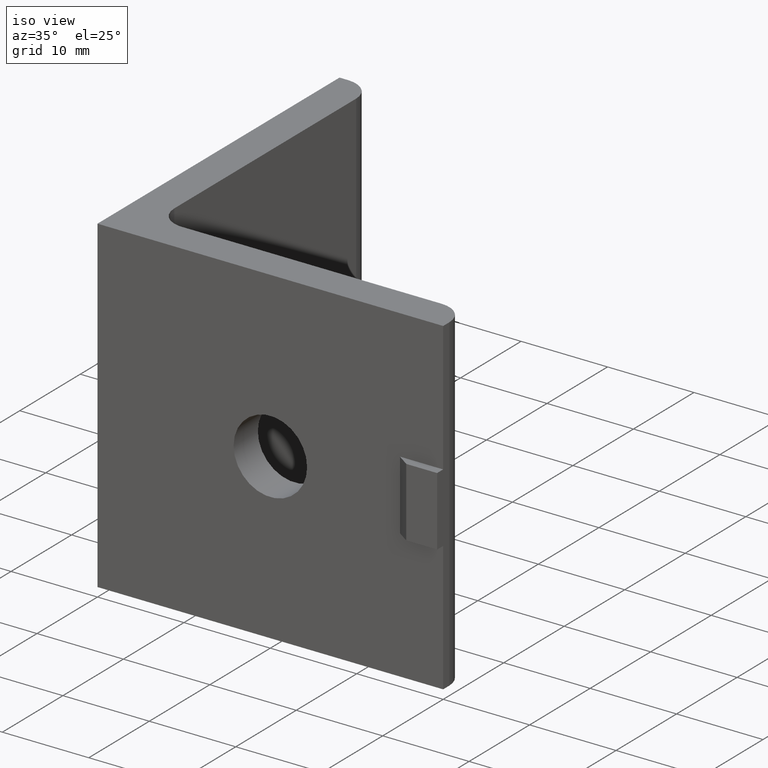
[diagram: clean part render]
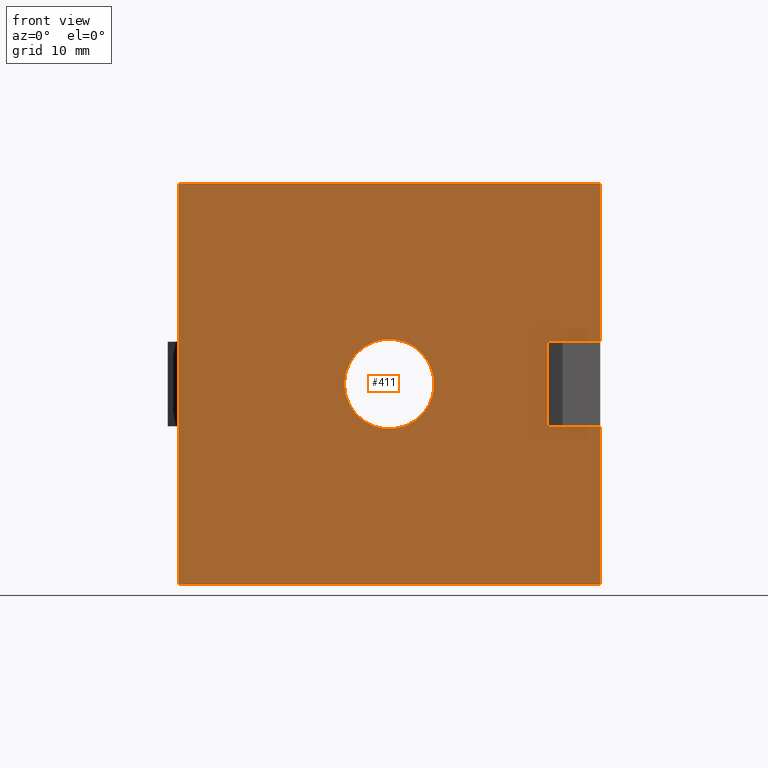
[diagram: tour spotlight — one face highlighted and labeled with its STEP entity id]
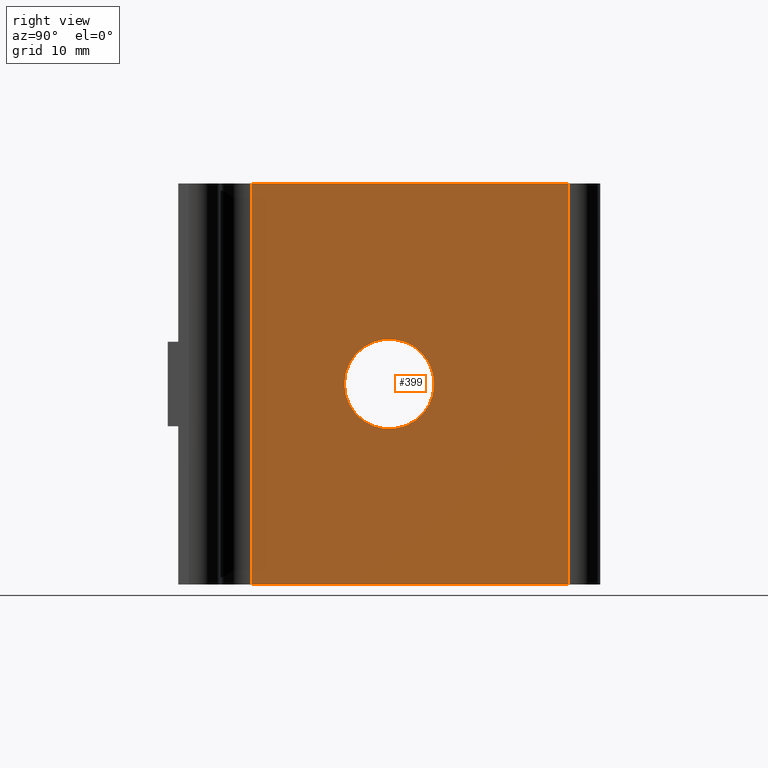
[diagram: tour spotlight — one face highlighted and labeled with its STEP entity id]
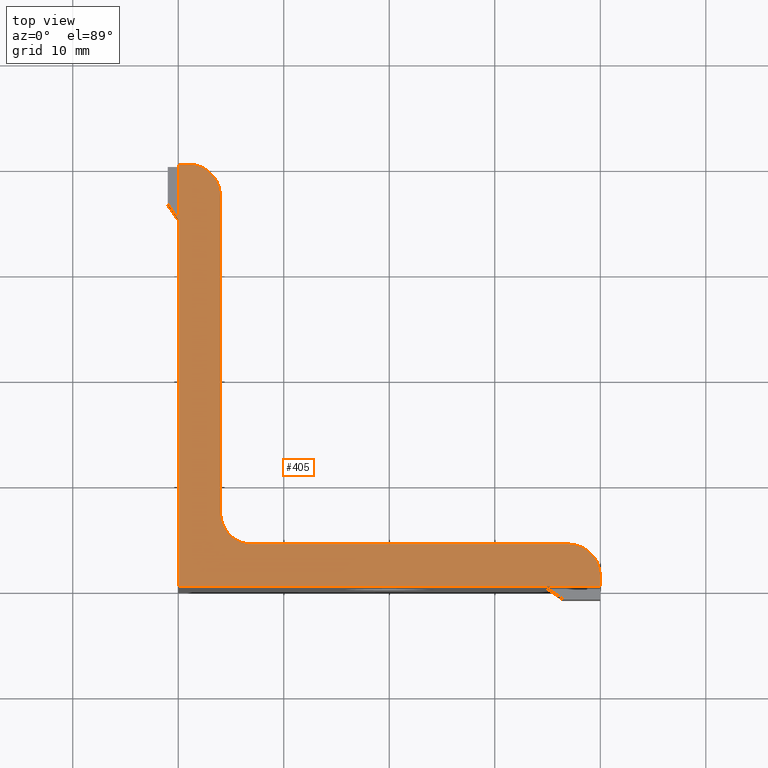
[diagram: tour spotlight — one face highlighted and labeled with its STEP entity id]
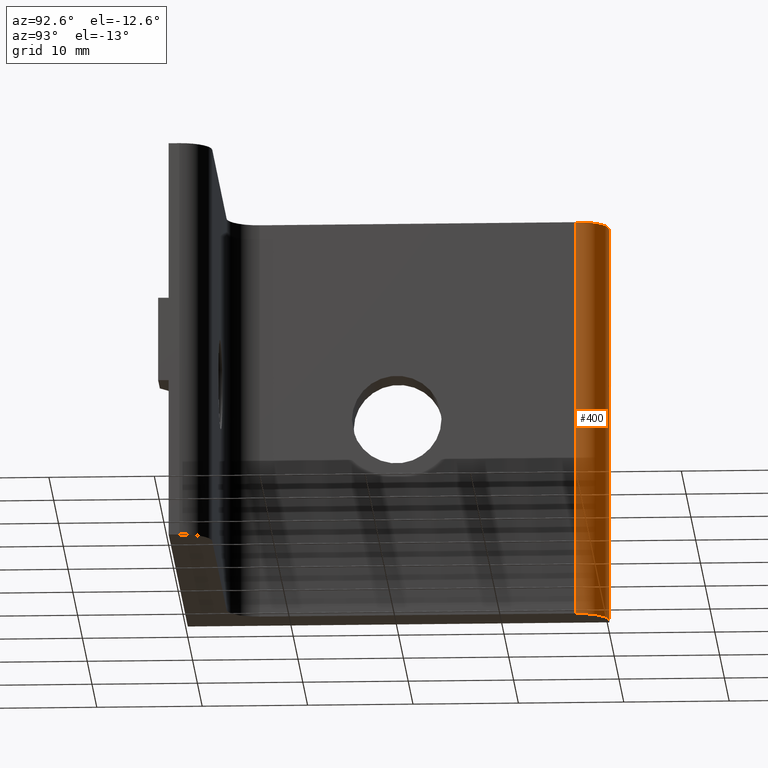
[diagram: tour spotlight — one face highlighted and labeled with its STEP entity id]
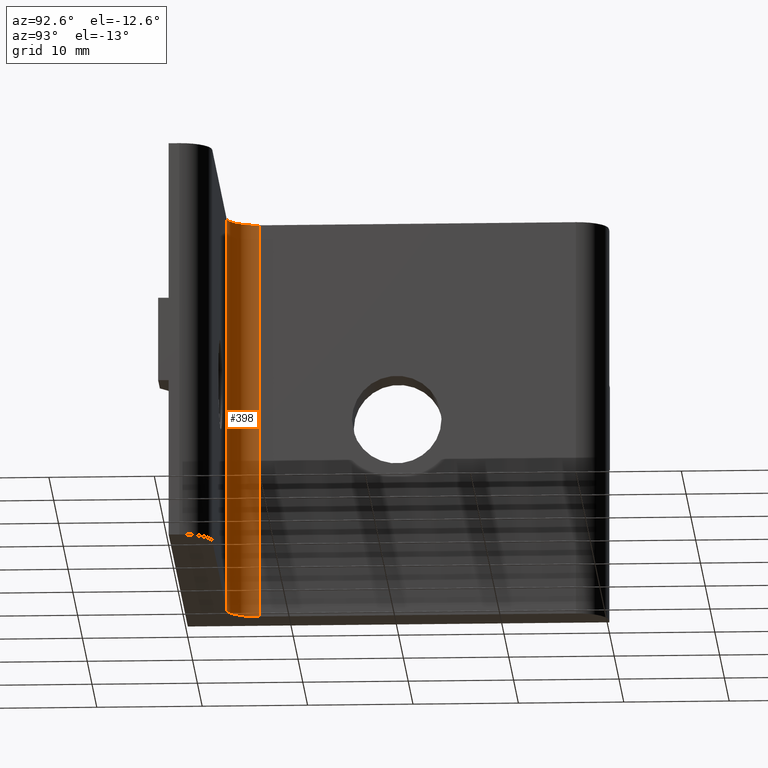
[diagram: tour spotlight — one face highlighted and labeled with its STEP entity id]
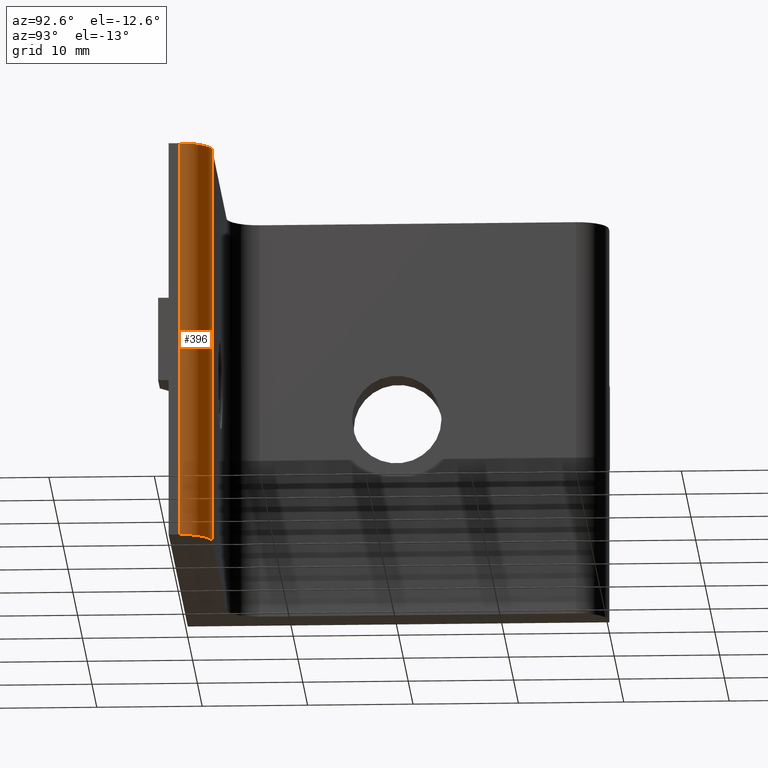
[diagram: tour spotlight — one face highlighted and labeled with its STEP entity id]
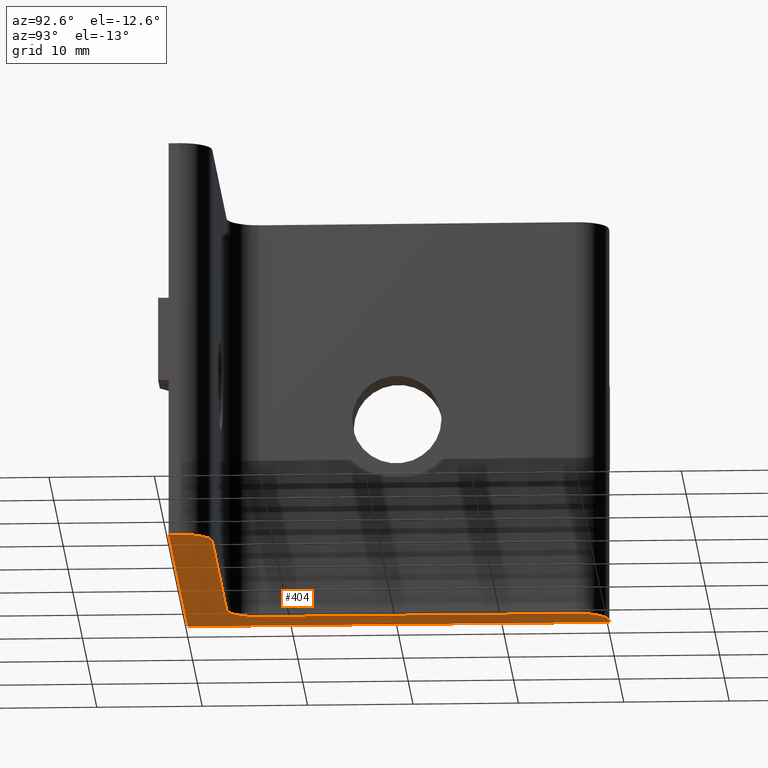
[diagram: tour spotlight — one face highlighted and labeled with its STEP entity id]
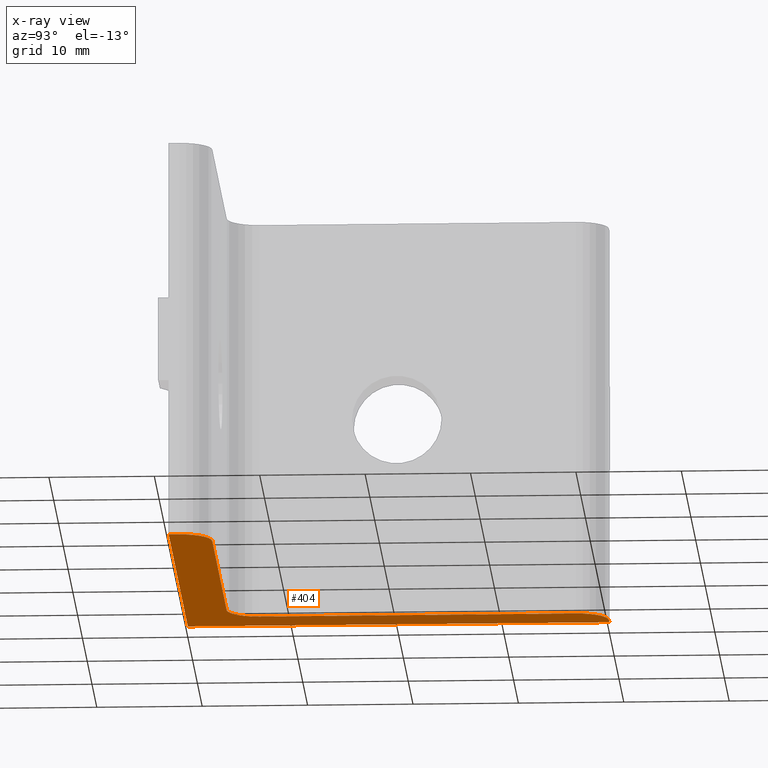
[diagram: x-ray of the same camera — body ghosted, this tour face saturated]
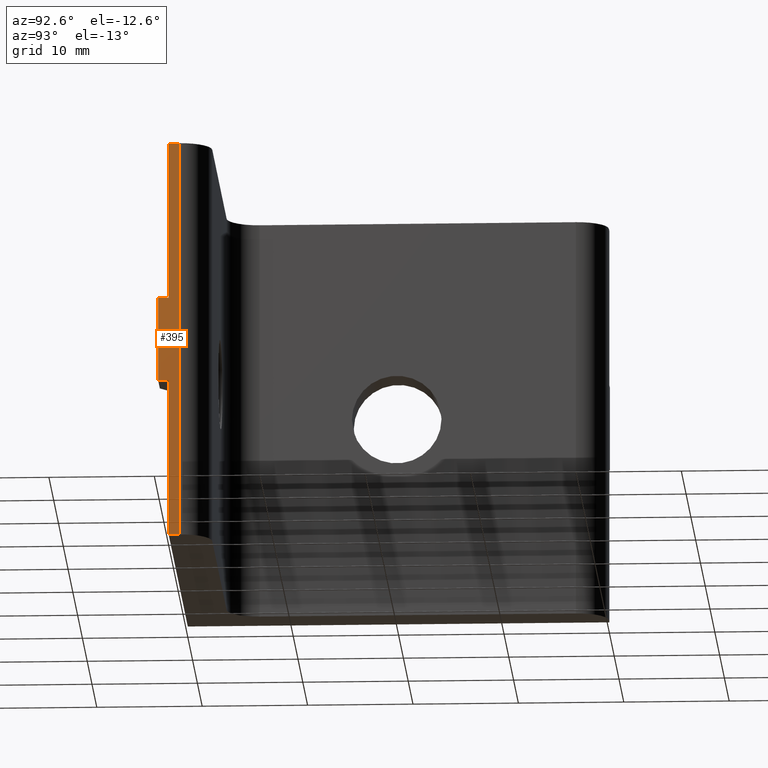
[diagram: tour spotlight — one face highlighted and labeled with its STEP entity id]
A machine part: a face-by-face anatomy tour. The part has 21 B-rep faces; the first image is the clean iso view, then the 8 largest visible faces are spotlighted one at a time (largest first), each with its STEP entity span.

Face 1 — front view, entity #411. In plain terms, the highlighted planar face has unit normal (0, -1, 0).
Definition (entity closure, byte-faithful):
#18=FACE_BOUND('',#79,.T.);
#30=CIRCLE('',#444,4.24999905648292);
#54=FACE_OUTER_BOUND('',#78,.T.);
#78=EDGE_LOOP('',(#364,#365,#366,#367,#368,#369,#370,#371));
#79=EDGE_LOOP('',(#372));
#84=LINE('',#560,#129);
#93=LINE('',#579,#138);
#96=LINE('',#584,#141);
#120=LINE('',#648,#165);
#123=LINE('',#653,#168);
#126=LINE('',#659,#171);
#127=LINE('',#663,#172);
#128=LINE('',#665,#173);
#129=VECTOR('',#451,8.);
#138=VECTOR('',#464,15.);
#141=VECTOR('',#467,15.);
#165=VECTOR('',#525,39.9999863498886);
#168=VECTOR('',#530,39.9999863498886);
#171=VECTOR('',#539,38.);
#172=VECTOR('',#544,5.00000747002513);
#173=VECTOR('',#547,5.00000747002513);
#174=VERTEX_POINT('',#558);
#175=VERTEX_POINT('',#559);
#182=VERTEX_POINT('',#576);
#183=VERTEX_POINT('',#578);
#184=VERTEX_POINT('',#581);
#185=VERTEX_POINT('',#583);
#208=VERTEX_POINT('',#647);
#209=VERTEX_POINT('',#651);
#211=VERTEX_POINT('',#667);
#212=EDGE_CURVE('',#174,#175,#84,.T.);
#221=EDGE_CURVE('',#182,#183,#93,.T.);
#224=EDGE_CURVE('',#185,#184,#96,.T.);
#256=EDGE_CURVE('',#208,#185,#120,.T.);
#259=EDGE_CURVE('',#209,#182,#123,.T.);
#262=EDGE_CURVE('',#208,#209,#126,.T.);
#264=EDGE_CURVE('',#175,#183,#127,.T.);
#265=EDGE_CURVE('',#184,#174,#128,.T.);
#266=EDGE_CURVE('',#211,#211,#30,.T.);
#364=ORIENTED_EDGE('',*,*,#264,.T.);
#365=ORIENTED_EDGE('',*,*,#221,.F.);
#366=ORIENTED_EDGE('',*,*,#259,.F.);
#367=ORIENTED_EDGE('',*,*,#262,.F.);
#368=ORIENTED_EDGE('',*,*,#256,.T.);
#369=ORIENTED_EDGE('',*,*,#224,.T.);
#370=ORIENTED_EDGE('',*,*,#265,.T.);
#371=ORIENTED_EDGE('',*,*,#212,.T.);
#372=ORIENTED_EDGE('',*,*,#266,.T.);
#392=PLANE('',#443);
#411=ADVANCED_FACE('',(#54,#18),#392,.T.);
#443=AXIS2_PLACEMENT_3D('',#666,#548,#549);
#444=AXIS2_PLACEMENT_3D('',#668,#550,#551);
#451=DIRECTION('',(0.,0.,1.));
#464=DIRECTION('',(0.,0.,-1.));
#467=DIRECTION('',(0.,0.,1.));
#525=DIRECTION('',(1.,0.,0.));
#530=DIRECTION('',(1.,0.,0.));
#539=DIRECTION('',(0.,0.,1.));
#544=DIRECTION('',(1.,0.,0.));
#547=DIRECTION('',(-1.,0.,0.));
#548=DIRECTION('center_axis',(0.,-1.,0.));
#549=DIRECTION('ref_axis',(0.,0.,-1.));
#550=DIRECTION('center_axis',(0.,1.,0.));
#551=DIRECTION('ref_axis',(-1.,0.,0.));
#558=CARTESIAN_POINT('',(34.999978879863,0.,-4.));
#559=CARTESIAN_POINT('',(34.999978879863,0.,4.));
#560=CARTESIAN_POINT('',(34.999978879863,0.,-4.));
#576=CARTESIAN_POINT('',(39.9999863498886,0.,19.));
#578=CARTESIAN_POINT('',(39.9999863498881,0.,4.));
#579=CARTESIAN_POINT('',(39.9999863498886,0.,19.));
#581=CARTESIAN_POINT('',(39.9999863498881,0.,-4.));
#583=CARTESIAN_POINT('',(39.9999863498886,0.,-19.));
#584=CARTESIAN_POINT('',(39.9999863498886,0.,-19.));
#647=CARTESIAN_POINT('',(0.,0.,-19.));
#648=CARTESIAN_POINT('',(0.,0.,-19.));
#651=CARTESIAN_POINT('',(0.,0.,19.));
#653=CARTESIAN_POINT('',(0.,0.,19.));
#659=CARTESIAN_POINT('',(0.,0.,-19.));
#663=CARTESIAN_POINT('',(34.999978879863,0.,4.));
#665=CARTESIAN_POINT('',(39.9999863498881,0.,-4.));
#666=CARTESIAN_POINT('Origin',(-0.003598488838179,0.,-19.0035984888382));
#667=CARTESIAN_POINT('',(24.2499987414494,-6.514193E-14,0.));
#668=CARTESIAN_POINT('Origin',(19.9999996849665,0.,0.));

Face 2 — right view, entity #399. In plain terms, the highlighted planar face has unit normal (1, 0, 0).
Definition (entity closure, byte-faithful):
#16=FACE_BOUND('',#65,.T.);
#26=CIRCLE('',#428,4.24999905648292);
#42=FACE_OUTER_BOUND('',#64,.T.);
#64=EDGE_LOOP('',(#296,#297,#298,#299));
#65=EDGE_LOOP('',(#300));
#102=LINE('',#604,#147);
#103=LINE('',#608,#148);
#104=LINE('',#610,#149);
#105=LINE('',#611,#150);
#147=VECTOR('',#487,38.);
#148=VECTOR('',#492,29.9999916301208);
#149=VECTOR('',#493,38.);
#150=VECTOR('',#494,29.9999916301208);
#191=VERTEX_POINT('',#601);
#192=VERTEX_POINT('',#603);
#193=VERTEX_POINT('',#607);
#194=VERTEX_POINT('',#609);
#195=VERTEX_POINT('',#612);
#234=EDGE_CURVE('',#191,#192,#102,.T.);
#236=EDGE_CURVE('',#191,#193,#103,.T.);
#237=EDGE_CURVE('',#193,#194,#104,.T.);
#238=EDGE_CURVE('',#192,#194,#105,.T.);
#239=EDGE_CURVE('',#195,#195,#26,.T.);
#296=ORIENTED_EDGE('',*,*,#236,.T.);
#297=ORIENTED_EDGE('',*,*,#237,.T.);
#298=ORIENTED_EDGE('',*,*,#238,.F.);
#299=ORIENTED_EDGE('',*,*,#234,.F.);
#300=ORIENTED_EDGE('',*,*,#239,.F.);
#381=PLANE('',#427);
#399=ADVANCED_FACE('',(#42,#16),#381,.T.);
#427=AXIS2_PLACEMENT_3D('',#606,#490,#491);
#428=AXIS2_PLACEMENT_3D('',#613,#495,#496);
#487=DIRECTION('',(0.,0.,1.));
#490=DIRECTION('center_axis',(1.,0.,0.));
#491=DIRECTION('ref_axis',(0.,0.,-1.));
#492=DIRECTION('',(0.,1.,0.));
#493=DIRECTION('',(0.,0.,1.));
#494=DIRECTION('',(0.,1.,0.));
#495=DIRECTION('center_axis',(1.,0.,0.));
#496=DIRECTION('ref_axis',(0.,1.,0.));
#601=CARTESIAN_POINT('',(4.00000006370487,6.99999825401028,-19.));
#603=CARTESIAN_POINT('',(4.00000006370487,6.99999825401028,19.));
#604=CARTESIAN_POINT('',(4.00000006370487,6.99999825401028,-19.));
#606=CARTESIAN_POINT('Origin',(4.00000006370487,6.99999825401028,-19.));
#607=CARTESIAN_POINT('',(4.00000006370487,36.9999898841311,-19.));
#608=CARTESIAN_POINT('',(4.00000006370487,6.99999825401028,-19.));
#609=CARTESIAN_POINT('',(4.00000006370487,36.9999898841311,19.));
#610=CARTESIAN_POINT('',(4.00000006370487,36.9999898841311,-19.));
#611=CARTESIAN_POINT('',(4.00000006370487,6.99999825401028,19.));
#612=CARTESIAN_POINT('',(4.00000006370487,15.7500041334356,3.552714E-15));
#613=CARTESIAN_POINT('Origin',(4.00000006370487,20.0000031899185,3.552714E-15));

Face 3 — top view, entity #405. In plain terms, the highlighted planar face has unit normal (0, 0, 1).
Definition (entity closure, byte-faithful):
#22=CIRCLE('',#421,3.00000087730359);
#25=CIRCLE('',#426,3.01646599772585);
#28=CIRCLE('',#431,3.00000123570885);
#48=FACE_OUTER_BOUND('',#71,.T.);
#71=EDGE_LOOP('',(#330,#331,#332,#333,#334,#335,#336,#337,#338));
#92=LINE('',#577,#137);
#101=LINE('',#597,#146);
#105=LINE('',#611,#150);
#113=LINE('',#633,#158);
#122=LINE('',#652,#167);
#123=LINE('',#653,#168);
#137=VECTOR('',#463,1.00000586461692);
#146=VECTOR('',#480,29.6686892302173);
#150=VECTOR('',#494,29.9999916301208);
#158=VECTOR('',#512,0.999998827996023);
#167=VECTOR('',#529,39.9999911198402);
#168=VECTOR('',#530,39.9999863498886);
#181=VERTEX_POINT('',#574);
#182=VERTEX_POINT('',#576);
#187=VERTEX_POINT('',#589);
#189=VERTEX_POINT('',#595);
#192=VERTEX_POINT('',#603);
#194=VERTEX_POINT('',#609);
#197=VERTEX_POINT('',#617);
#203=VERTEX_POINT('',#631);
#209=VERTEX_POINT('',#651);
#220=EDGE_CURVE('',#182,#181,#92,.T.);
#228=EDGE_CURVE('',#181,#187,#22,.T.);
#231=EDGE_CURVE('',#187,#189,#101,.T.);
#235=EDGE_CURVE('',#189,#192,#25,.T.);
#238=EDGE_CURVE('',#192,#194,#105,.T.);
#242=EDGE_CURVE('',#194,#197,#28,.T.);
#249=EDGE_CURVE('',#197,#203,#113,.T.);
#258=EDGE_CURVE('',#209,#203,#122,.T.);
#259=EDGE_CURVE('',#209,#182,#123,.T.);
#330=ORIENTED_EDGE('',*,*,#228,.T.);
#331=ORIENTED_EDGE('',*,*,#231,.T.);
#332=ORIENTED_EDGE('',*,*,#235,.T.);
#333=ORIENTED_EDGE('',*,*,#238,.T.);
#334=ORIENTED_EDGE('',*,*,#242,.T.);
#335=ORIENTED_EDGE('',*,*,#249,.T.);
#336=ORIENTED_EDGE('',*,*,#258,.F.);
#337=ORIENTED_EDGE('',*,*,#259,.T.);
#338=ORIENTED_EDGE('',*,*,#220,.T.);
#386=PLANE('',#436);
#405=ADVANCED_FACE('',(#48),#386,.T.);
#421=AXIS2_PLACEMENT_3D('',#591,#474,#475);
#426=AXIS2_PLACEMENT_3D('',#605,#488,#489);
#431=AXIS2_PLACEMENT_3D('',#619,#502,#503);
#436=AXIS2_PLACEMENT_3D('',#650,#527,#528);
#463=DIRECTION('',(-2.30925034835165E-13,1.,0.));
#474=DIRECTION('center_axis',(0.,0.,1.));
#475=DIRECTION('ref_axis',(0.,1.,0.));
#480=DIRECTION('',(-1.,0.,0.));
#488=DIRECTION('center_axis',(0.,0.,-1.));
#489=DIRECTION('ref_axis',(-1.,0.,0.));
#494=DIRECTION('',(0.,1.,0.));
#502=DIRECTION('center_axis',(0.,0.,1.));
#503=DIRECTION('ref_axis',(1.,0.,0.));
#512=DIRECTION('',(-1.,0.,0.));
#527=DIRECTION('center_axis',(0.,0.,1.));
#528=DIRECTION('ref_axis',(1.,0.,0.));
#529=DIRECTION('',(0.,1.,0.));
#530=DIRECTION('',(1.,0.,0.));
#574=CARTESIAN_POINT('',(39.9999863498876,1.00000586461692,19.));
#576=CARTESIAN_POINT('',(39.9999863498886,0.,19.));
#577=CARTESIAN_POINT('',(39.9999863498883,-5.33140627519022E-26,19.));
#589=CARTESIAN_POINT('',(36.9999854725841,4.00000674192052,19.));
#591=CARTESIAN_POINT('Origin',(36.9999854725841,1.00000586461692,19.));
#595=CARTESIAN_POINT('',(7.33129624236676,4.00000674192097,19.));
#597=CARTESIAN_POINT('',(36.9999854725841,4.00000674192052,19.));
#603=CARTESIAN_POINT('',(4.00000006370487,6.99999825401028,19.));
#605=CARTESIAN_POINT('Origin',(7.01646606143072,6.99999825401028,19.));
#609=CARTESIAN_POINT('',(4.00000006370487,36.9999898841311,19.));
#611=CARTESIAN_POINT('',(4.00000006370487,6.99999825401028,19.));
#617=CARTESIAN_POINT('',(0.999998827996023,39.9999911198402,19.));
#619=CARTESIAN_POINT('Origin',(0.999998827996023,36.9999898841311,19.));
#631=CARTESIAN_POINT('',(0.,39.9999911198402,19.));
#633=CARTESIAN_POINT('',(0.999998827996023,39.9999911198402,19.));
#650=CARTESIAN_POINT('Origin',(-5.10000416927255,-5.10000360110735,19.));
#651=CARTESIAN_POINT('',(0.,0.,19.));
#652=CARTESIAN_POINT('',(0.,0.,19.));
#653=CARTESIAN_POINT('',(0.,0.,19.));

Face 4 — auxiliary view, entity #400. In plain terms, the highlighted cylindrical surface (edge-blend (fillet) strip) has radius 3 mm, axis along (0, 0, 1).
Definition (entity closure, byte-faithful):
#27=CIRCLE('',#430,3.00000123570885);
#28=CIRCLE('',#431,3.00000123570885);
#33=CYLINDRICAL_SURFACE('',#429,3.00000123570885);
#43=FACE_OUTER_BOUND('',#66,.T.);
#66=EDGE_LOOP('',(#301,#302,#303,#304));
#104=LINE('',#610,#149);
#106=LINE('',#618,#151);
#149=VECTOR('',#493,38.);
#151=VECTOR('',#501,38.);
#193=VERTEX_POINT('',#607);
#194=VERTEX_POINT('',#609);
#196=VERTEX_POINT('',#615);
#197=VERTEX_POINT('',#617);
#237=EDGE_CURVE('',#193,#194,#104,.T.);
#240=EDGE_CURVE('',#193,#196,#27,.T.);
#241=EDGE_CURVE('',#196,#197,#106,.T.);
#242=EDGE_CURVE('',#194,#197,#28,.T.);
#301=ORIENTED_EDGE('',*,*,#240,.T.);
#302=ORIENTED_EDGE('',*,*,#241,.T.);
#303=ORIENTED_EDGE('',*,*,#242,.F.);
#304=ORIENTED_EDGE('',*,*,#237,.F.);
#400=ADVANCED_FACE('',(#43),#33,.T.);
#429=AXIS2_PLACEMENT_3D('',#614,#497,#498);
#430=AXIS2_PLACEMENT_3D('',#616,#499,#500);
#431=AXIS2_PLACEMENT_3D('',#619,#502,#503);
#493=DIRECTION('',(0.,0.,1.));
#497=DIRECTION('center_axis',(0.,0.,1.));
#498=DIRECTION('ref_axis',(1.,0.,0.));
#499=DIRECTION('center_axis',(0.,0.,1.));
#500=DIRECTION('ref_axis',(1.,0.,0.));
#501=DIRECTION('',(0.,0.,1.));
#502=DIRECTION('center_axis',(0.,0.,1.));
#503=DIRECTION('ref_axis',(1.,0.,0.));
#607=CARTESIAN_POINT('',(4.00000006370487,36.9999898841311,-19.));
#609=CARTESIAN_POINT('',(4.00000006370487,36.9999898841311,19.));
#610=CARTESIAN_POINT('',(4.00000006370487,36.9999898841311,-19.));
#614=CARTESIAN_POINT('Origin',(0.999998827996023,36.9999898841311,-19.));
#615=CARTESIAN_POINT('',(0.999998827996023,39.9999911198402,-19.));
#616=CARTESIAN_POINT('Origin',(0.999998827996023,36.9999898841311,-19.));
#617=CARTESIAN_POINT('',(0.999998827996023,39.9999911198402,19.));
#618=CARTESIAN_POINT('',(0.999998827996023,39.9999911198402,-19.));
#619=CARTESIAN_POINT('Origin',(0.999998827996023,36.9999898841311,19.));

Face 5 — auxiliary view, entity #398. In plain terms, the highlighted cylindrical surface (edge-blend (fillet) strip) has radius 3.0165 mm, axis along (0, 0, -1).
Definition (entity closure, byte-faithful):
#24=CIRCLE('',#425,3.01646599772585);
#25=CIRCLE('',#426,3.01646599772585);
#32=CYLINDRICAL_SURFACE('',#424,3.01646599772585);
#41=FACE_OUTER_BOUND('',#63,.T.);
#63=EDGE_LOOP('',(#292,#293,#294,#295));
#100=LINE('',#596,#145);
#102=LINE('',#604,#147);
#145=VECTOR('',#479,38.);
#147=VECTOR('',#487,38.);
#188=VERTEX_POINT('',#593);
#189=VERTEX_POINT('',#595);
#191=VERTEX_POINT('',#601);
#192=VERTEX_POINT('',#603);
#230=EDGE_CURVE('',#188,#189,#100,.T.);
#233=EDGE_CURVE('',#188,#191,#24,.T.);
#234=EDGE_CURVE('',#191,#192,#102,.T.);
#235=EDGE_CURVE('',#189,#192,#25,.T.);
#292=ORIENTED_EDGE('',*,*,#233,.T.);
#293=ORIENTED_EDGE('',*,*,#234,.T.);
#294=ORIENTED_EDGE('',*,*,#235,.F.);
#295=ORIENTED_EDGE('',*,*,#230,.F.);
#398=ADVANCED_FACE('',(#41),#32,.F.);
#424=AXIS2_PLACEMENT_3D('',#600,#483,#484);
#425=AXIS2_PLACEMENT_3D('',#602,#485,#486);
#426=AXIS2_PLACEMENT_3D('',#605,#488,#489);
#479=DIRECTION('',(0.,0.,1.));
#483=DIRECTION('center_axis',(0.,0.,-1.));
#484=DIRECTION('ref_axis',(0.104370538628116,-0.994538481239654,0.));
#485=DIRECTION('center_axis',(0.,0.,-1.));
#486=DIRECTION('ref_axis',(-1.,0.,0.));
#487=DIRECTION('',(0.,0.,1.));
#488=DIRECTION('center_axis',(0.,0.,-1.));
#489=DIRECTION('ref_axis',(-1.,0.,0.));
#593=CARTESIAN_POINT('',(7.33129624236676,4.00000674192097,-19.));
#595=CARTESIAN_POINT('',(7.33129624236676,4.00000674192097,19.));
#596=CARTESIAN_POINT('',(7.33129624236676,4.00000674192097,-19.));
#600=CARTESIAN_POINT('Origin',(7.01646606143072,6.99999825401028,-19.));
#601=CARTESIAN_POINT('',(4.00000006370487,6.99999825401028,-19.));
#602=CARTESIAN_POINT('Origin',(7.01646606143072,6.99999825401028,-19.));
#603=CARTESIAN_POINT('',(4.00000006370487,6.99999825401028,19.));
#604=CARTESIAN_POINT('',(4.00000006370487,6.99999825401028,-19.));
#605=CARTESIAN_POINT('Origin',(7.01646606143072,6.99999825401028,19.));

Face 6 — auxiliary view, entity #396. In plain terms, the highlighted cylindrical surface (edge-blend (fillet) strip) has radius 3 mm, axis along (0, 0, 1).
Definition (entity closure, byte-faithful):
#21=CIRCLE('',#420,3.00000087730359);
#22=CIRCLE('',#421,3.00000087730359);
#31=CYLINDRICAL_SURFACE('',#419,3.00000087730359);
#39=FACE_OUTER_BOUND('',#60,.T.);
#60=EDGE_LOOP('',(#283,#284,#285,#286));
#91=LINE('',#575,#136);
#98=LINE('',#590,#143);
#136=VECTOR('',#462,38.);
#143=VECTOR('',#473,38.);
#180=VERTEX_POINT('',#573);
#181=VERTEX_POINT('',#574);
#186=VERTEX_POINT('',#587);
#187=VERTEX_POINT('',#589);
#219=EDGE_CURVE('',#180,#181,#91,.T.);
#226=EDGE_CURVE('',#180,#186,#21,.T.);
#227=EDGE_CURVE('',#186,#187,#98,.T.);
#228=EDGE_CURVE('',#181,#187,#22,.T.);
#283=ORIENTED_EDGE('',*,*,#226,.T.);
#284=ORIENTED_EDGE('',*,*,#227,.T.);
#285=ORIENTED_EDGE('',*,*,#228,.F.);
#286=ORIENTED_EDGE('',*,*,#219,.F.);
#396=ADVANCED_FACE('',(#39),#31,.T.);
#419=AXIS2_PLACEMENT_3D('',#586,#469,#470);
#420=AXIS2_PLACEMENT_3D('',#588,#471,#472);
#421=AXIS2_PLACEMENT_3D('',#591,#474,#475);
#462=DIRECTION('',(0.,0.,1.));
#469=DIRECTION('center_axis',(0.,0.,1.));
#470=DIRECTION('ref_axis',(1.,0.,0.));
#471=DIRECTION('center_axis',(0.,0.,1.));
#472=DIRECTION('ref_axis',(0.,1.,0.));
#473=DIRECTION('',(0.,0.,1.));
#474=DIRECTION('center_axis',(0.,0.,1.));
#475=DIRECTION('ref_axis',(0.,1.,0.));
#573=CARTESIAN_POINT('',(39.9999863498876,1.00000586461692,-19.));
#574=CARTESIAN_POINT('',(39.9999863498876,1.00000586461692,19.));
#575=CARTESIAN_POINT('',(39.9999863498876,1.00000586461692,-19.));
#586=CARTESIAN_POINT('Origin',(36.9999854725841,1.00000586461692,-19.));
#587=CARTESIAN_POINT('',(36.9999854725841,4.00000674192052,-19.));
#588=CARTESIAN_POINT('Origin',(36.9999854725841,1.00000586461692,-19.));
#589=CARTESIAN_POINT('',(36.9999854725841,4.00000674192052,19.));
#590=CARTESIAN_POINT('',(36.9999854725841,4.00000674192052,-19.));
#591=CARTESIAN_POINT('Origin',(36.9999854725841,1.00000586461692,19.));

Face 7 — auxiliary view, entity #404. An x-ray twin of the same camera follows (body ghosted, this face saturated) — the face is partly hidden behind the body. In plain terms, the highlighted planar face has unit normal (0, 0, 1).
Definition (entity closure, byte-faithful):
#21=CIRCLE('',#420,3.00000087730359);
#24=CIRCLE('',#425,3.01646599772585);
#27=CIRCLE('',#430,3.00000123570885);
#47=FACE_OUTER_BOUND('',#70,.T.);
#70=EDGE_LOOP('',(#321,#322,#323,#324,#325,#326,#327,#328,#329));
#97=LINE('',#585,#142);
#99=LINE('',#594,#144);
#103=LINE('',#608,#148);
#107=LINE('',#622,#152);
#120=LINE('',#648,#165);
#121=LINE('',#649,#166);
#142=VECTOR('',#468,1.00000586461692);
#144=VECTOR('',#478,29.6686892302173);
#148=VECTOR('',#492,29.9999916301208);
#152=VECTOR('',#506,0.999998827996023);
#165=VECTOR('',#525,39.9999863498886);
#166=VECTOR('',#526,39.9999911198402);
#180=VERTEX_POINT('',#573);
#185=VERTEX_POINT('',#583);
#186=VERTEX_POINT('',#587);
#188=VERTEX_POINT('',#593);
#191=VERTEX_POINT('',#601);
#193=VERTEX_POINT('',#607);
#196=VERTEX_POINT('',#615);
#198=VERTEX_POINT('',#621);
#208=VERTEX_POINT('',#647);
#225=EDGE_CURVE('',#185,#180,#97,.T.);
#226=EDGE_CURVE('',#180,#186,#21,.T.);
#229=EDGE_CURVE('',#186,#188,#99,.T.);
#233=EDGE_CURVE('',#188,#191,#24,.T.);
#236=EDGE_CURVE('',#191,#193,#103,.T.);
#240=EDGE_CURVE('',#193,#196,#27,.T.);
#243=EDGE_CURVE('',#196,#198,#107,.T.);
#256=EDGE_CURVE('',#208,#185,#120,.T.);
#257=EDGE_CURVE('',#208,#198,#121,.T.);
#321=ORIENTED_EDGE('',*,*,#225,.F.);
#322=ORIENTED_EDGE('',*,*,#256,.F.);
#323=ORIENTED_EDGE('',*,*,#257,.T.);
#324=ORIENTED_EDGE('',*,*,#243,.F.);
#325=ORIENTED_EDGE('',*,*,#240,.F.);
#326=ORIENTED_EDGE('',*,*,#236,.F.);
#327=ORIENTED_EDGE('',*,*,#233,.F.);
#328=ORIENTED_EDGE('',*,*,#229,.F.);
#329=ORIENTED_EDGE('',*,*,#226,.F.);
#385=PLANE('',#435);
#404=ADVANCED_FACE('',(#47),#385,.F.);
#420=AXIS2_PLACEMENT_3D('',#588,#471,#472);
#425=AXIS2_PLACEMENT_3D('',#602,#485,#486);
#430=AXIS2_PLACEMENT_3D('',#616,#499,#500);
#435=AXIS2_PLACEMENT_3D('',#646,#523,#524);
#468=DIRECTION('',(-2.30925034835165E-13,1.,0.));
#471=DIRECTION('center_axis',(0.,0.,1.));
#472=DIRECTION('ref_axis',(0.,1.,0.));
#478=DIRECTION('',(-1.,0.,0.));
#485=DIRECTION('center_axis',(0.,0.,-1.));
#486=DIRECTION('ref_axis',(-1.,0.,0.));
#492=DIRECTION('',(0.,1.,0.));
#499=DIRECTION('center_axis',(0.,0.,1.));
#500=DIRECTION('ref_axis',(1.,0.,0.));
#506=DIRECTION('',(-1.,0.,0.));
#523=DIRECTION('center_axis',(0.,0.,1.));
#524=DIRECTION('ref_axis',(1.,0.,0.));
#525=DIRECTION('',(1.,0.,0.));
#526=DIRECTION('',(0.,1.,0.));
#573=CARTESIAN_POINT('',(39.9999863498876,1.00000586461692,-19.));
#583=CARTESIAN_POINT('',(39.9999863498886,0.,-19.));
#585=CARTESIAN_POINT('',(39.9999863498883,-5.33140627519022E-26,-19.));
#587=CARTESIAN_POINT('',(36.9999854725841,4.00000674192052,-19.));
#588=CARTESIAN_POINT('Origin',(36.9999854725841,1.00000586461692,-19.));
#593=CARTESIAN_POINT('',(7.33129624236676,4.00000674192097,-19.));
#594=CARTESIAN_POINT('',(36.9999854725841,4.00000674192052,-19.));
#601=CARTESIAN_POINT('',(4.00000006370487,6.99999825401028,-19.));
#602=CARTESIAN_POINT('Origin',(7.01646606143072,6.99999825401028,-19.));
#607=CARTESIAN_POINT('',(4.00000006370487,36.9999898841311,-19.));
#608=CARTESIAN_POINT('',(4.00000006370487,6.99999825401028,-19.));
#615=CARTESIAN_POINT('',(0.999998827996023,39.9999911198402,-19.));
#616=CARTESIAN_POINT('Origin',(0.999998827996023,36.9999898841311,-19.));
#621=CARTESIAN_POINT('',(0.,39.9999911198402,-19.));
#622=CARTESIAN_POINT('',(0.999998827996023,39.9999911198402,-19.));
#646=CARTESIAN_POINT('Origin',(-5.10000416927255,-5.10000360110735,-19.));
#647=CARTESIAN_POINT('',(0.,0.,-19.));
#648=CARTESIAN_POINT('',(0.,0.,-19.));
#649=CARTESIAN_POINT('',(0.,0.,-19.));

Face 8 — auxiliary view, entity #395. In plain terms, the highlighted planar face has unit normal (1, 0, 0).
Definition (entity closure, byte-faithful):
#38=FACE_OUTER_BOUND('',#59,.T.);
#59=EDGE_LOOP('',(#275,#276,#277,#278,#279,#280,#281,#282));
#89=LINE('',#570,#134);
#91=LINE('',#575,#136);
#92=LINE('',#577,#137);
#93=LINE('',#579,#138);
#94=LINE('',#580,#139);
#95=LINE('',#582,#140);
#96=LINE('',#584,#141);
#97=LINE('',#585,#142);
#134=VECTOR('',#458,8.);
#136=VECTOR('',#462,38.);
#137=VECTOR('',#463,1.00000586461692);
#138=VECTOR('',#464,15.);
#139=VECTOR('',#465,0.999999777934136);
#140=VECTOR('',#466,0.999999777934136);
#141=VECTOR('',#467,15.);
#142=VECTOR('',#468,1.00000586461692);
#178=VERTEX_POINT('',#567);
#179=VERTEX_POINT('',#569);
#180=VERTEX_POINT('',#573);
#181=VERTEX_POINT('',#574);
#182=VERTEX_POINT('',#576);
#183=VERTEX_POINT('',#578);
#184=VERTEX_POINT('',#581);
#185=VERTEX_POINT('',#583);
#217=EDGE_CURVE('',#178,#179,#89,.T.);
#219=EDGE_CURVE('',#180,#181,#91,.T.);
#220=EDGE_CURVE('',#182,#181,#92,.T.);
#221=EDGE_CURVE('',#182,#183,#93,.T.);
#222=EDGE_CURVE('',#179,#183,#94,.T.);
#223=EDGE_CURVE('',#178,#184,#95,.T.);
#224=EDGE_CURVE('',#185,#184,#96,.T.);
#225=EDGE_CURVE('',#185,#180,#97,.T.);
#275=ORIENTED_EDGE('',*,*,#219,.T.);
#276=ORIENTED_EDGE('',*,*,#220,.F.);
#277=ORIENTED_EDGE('',*,*,#221,.T.);
#278=ORIENTED_EDGE('',*,*,#222,.F.);
#279=ORIENTED_EDGE('',*,*,#217,.F.);
#280=ORIENTED_EDGE('',*,*,#223,.T.);
#281=ORIENTED_EDGE('',*,*,#224,.F.);
#282=ORIENTED_EDGE('',*,*,#225,.T.);
#379=PLANE('',#418);
#395=ADVANCED_FACE('',(#38),#379,.T.);
#418=AXIS2_PLACEMENT_3D('',#572,#460,#461);
#458=DIRECTION('',(0.,0.,1.));
#460=DIRECTION('center_axis',(1.,2.27373E-13,0.));
#461=DIRECTION('ref_axis',(0.,0.,-1.));
#462=DIRECTION('',(0.,0.,1.));
#463=DIRECTION('',(-2.30925034835165E-13,1.,0.));
#464=DIRECTION('',(0.,0.,-1.));
#465=DIRECTION('',(-4.52971094636481E-13,1.,0.));
#466=DIRECTION('',(-4.52971094636481E-13,1.,1.66533490675177E-15));
#467=DIRECTION('',(0.,0.,1.));
#468=DIRECTION('',(-2.30925034835165E-13,1.,0.));
#567=CARTESIAN_POINT('',(39.9999863498886,-0.999999777934136,-4.));
#569=CARTESIAN_POINT('',(39.9999863498886,-0.999999777934136,4.));
#570=CARTESIAN_POINT('',(39.9999863498886,-0.999999777934136,-4.));
#572=CARTESIAN_POINT('Origin',(39.9999863498886,-0.999999777934136,-19.));
#573=CARTESIAN_POINT('',(39.9999863498876,1.00000586461692,-19.));
#574=CARTESIAN_POINT('',(39.9999863498876,1.00000586461692,19.));
#575=CARTESIAN_POINT('',(39.9999863498876,1.00000586461692,-19.));
#576=CARTESIAN_POINT('',(39.9999863498886,0.,19.));
#577=CARTESIAN_POINT('',(39.9999863498883,-5.33140627519022E-26,19.));
#578=CARTESIAN_POINT('',(39.9999863498881,0.,4.));
#579=CARTESIAN_POINT('',(39.9999863498886,0.,19.));
#580=CARTESIAN_POINT('',(39.9999863498886,-0.999999777934136,4.));
#581=CARTESIAN_POINT('',(39.9999863498881,0.,-4.));
#582=CARTESIAN_POINT('',(39.9999863498886,-0.999999777934136,-4.));
#583=CARTESIAN_POINT('',(39.9999863498886,0.,-19.));
#584=CARTESIAN_POINT('',(39.9999863498886,0.,-19.));
#585=CARTESIAN_POINT('',(39.9999863498883,-5.33140627519022E-26,-19.));